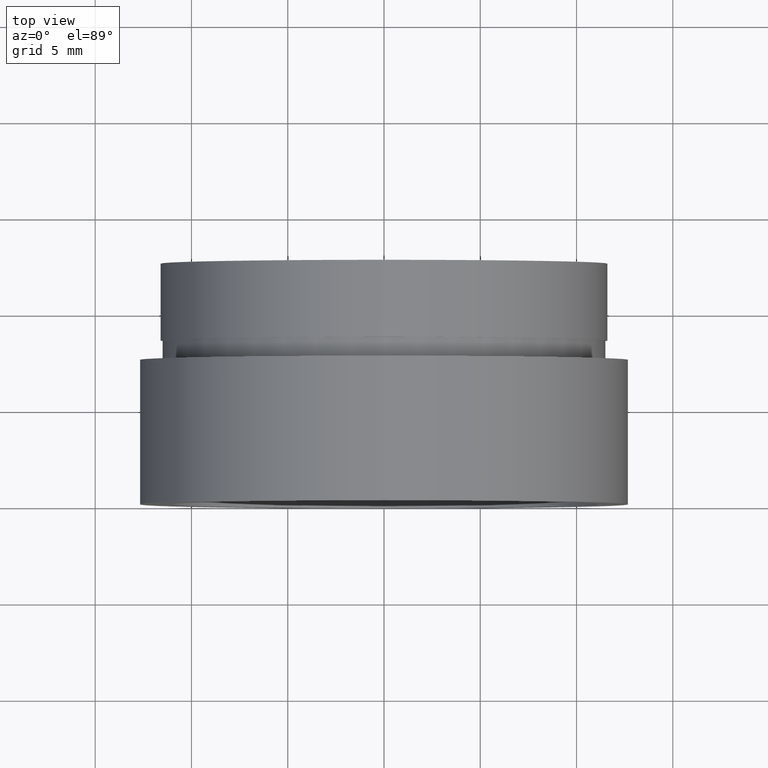
[diagram: clean part render]
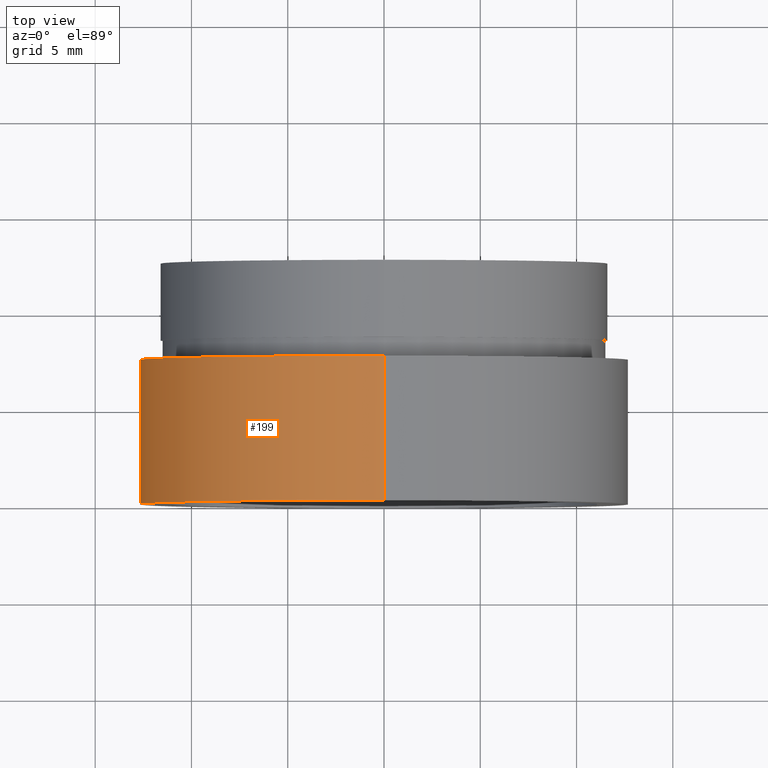
[diagram: same view with one face highlighted and labeled with its STEP entity id]
A machine part, top view. The second image highlights one B-rep face of the part: STEP entity #199.
In plain terms, the highlighted cylindrical surface (partial cylindrical patch) has radius 12.7 mm, axis along (-0, 1, -0).
Its self-contained STEP definition (entity closure, byte-faithful):
#8 = CARTESIAN_POINT ( 'NONE',  ( 1.555301434917141000E-015, -2.775557561562891400E-014, -12.70000000000002100 ) ) ;
#18 = CARTESIAN_POINT ( 'NONE',  ( 1.555301434917140800E-015, 7.499999999999978700, -12.70000000000001900 ) ) ;
#19 = EDGE_CURVE ( 'NONE', #468, #500, #156, .T. ) ;
#29 = CARTESIAN_POINT ( 'NONE',  ( 0.0000000000000000000, 161.3761669434274500, 0.0000000000000000000 ) ) ;
#65 = VECTOR ( 'NONE', #453, 1000.000000000000000 ) ;
#74 = EDGE_LOOP ( 'NONE', ( #618, #103, #320, #298 ) ) ;
#77 = AXIS2_PLACEMENT_3D ( 'NONE', #369, #167, #513 ) ;
#91 = EDGE_CURVE ( 'NONE', #550, #500, #226, .T. ) ;
#103 = ORIENTED_EDGE ( 'NONE', *, *, #261, .T. ) ;
#156 = CIRCLE ( 'NONE', #77, 12.70000000000001900 ) ;
#160 = CARTESIAN_POINT ( 'NONE',  ( 1.555301434917141000E-015, 161.3761669434274500, -12.70000000000002100 ) ) ;
#167 = DIRECTION ( 'NONE',  ( -0.0000000000000000000, 1.000000000000000000, -0.0000000000000000000 ) ) ;
#193 = DIRECTION ( 'NONE',  ( -0.0000000000000000000, 1.000000000000000000, -0.0000000000000000000 ) ) ;
#199 = ADVANCED_FACE ( 'NONE', ( #263 ), #561, .T. ) ;
#226 = LINE ( 'NONE', #428, #569 ) ;
#261 = EDGE_CURVE ( 'NONE', #549, #550, #472, .T. ) ;
#263 = FACE_OUTER_BOUND ( 'NONE', #74, .T. ) ;
#278 = DIRECTION ( 'NONE',  ( -0.0000000000000000000, 1.000000000000000000, -0.0000000000000000000 ) ) ;
#298 = ORIENTED_EDGE ( 'NONE', *, *, #19, .F. ) ;
#310 = CARTESIAN_POINT ( 'NONE',  ( 0.0000000000000000000, 7.499999999999978700, 12.70000000000001900 ) ) ;
#320 = ORIENTED_EDGE ( 'NONE', *, *, #91, .T. ) ;
#337 = DIRECTION ( 'NONE',  ( 0.0000000000000000000, 0.0000000000000000000, 1.000000000000000000 ) ) ;
#358 = CARTESIAN_POINT ( 'NONE',  ( 0.0000000000000000000, -2.775557561562891400E-014, 12.70000000000002100 ) ) ;
#369 = CARTESIAN_POINT ( 'NONE',  ( 0.0000000000000000000, 7.499999999999978700, 0.0000000000000000000 ) ) ;
#376 = AXIS2_PLACEMENT_3D ( 'NONE', #29, #430, #517 ) ;
#388 = CARTESIAN_POINT ( 'NONE',  ( 0.0000000000000000000, -2.775557561562891400E-014, 0.0000000000000000000 ) ) ;
#428 = CARTESIAN_POINT ( 'NONE',  ( 0.0000000000000000000, 161.3761669434274500, 12.70000000000002100 ) ) ;
#430 = DIRECTION ( 'NONE',  ( -0.0000000000000000000, 1.000000000000000000, -0.0000000000000000000 ) ) ;
#453 = DIRECTION ( 'NONE',  ( -0.0000000000000000000, 1.000000000000000000, -0.0000000000000000000 ) ) ;
#460 = AXIS2_PLACEMENT_3D ( 'NONE', #388, #193, #337 ) ;
#468 = VERTEX_POINT ( 'NONE', #18 ) ;
#472 = CIRCLE ( 'NONE', #460, 12.70000000000002100 ) ;
#483 = LINE ( 'NONE', #160, #65 ) ;
#500 = VERTEX_POINT ( 'NONE', #310 ) ;
#513 = DIRECTION ( 'NONE',  ( 0.0000000000000000000, 0.0000000000000000000, 1.000000000000000000 ) ) ;
#517 = DIRECTION ( 'NONE',  ( 0.0000000000000000000, 0.0000000000000000000, 1.000000000000000000 ) ) ;
#537 = EDGE_CURVE ( 'NONE', #549, #468, #483, .T. ) ;
#549 = VERTEX_POINT ( 'NONE', #8 ) ;
#550 = VERTEX_POINT ( 'NONE', #358 ) ;
#561 = CYLINDRICAL_SURFACE ( 'NONE', #376, 12.70000000000002100 ) ;
#569 = VECTOR ( 'NONE', #278, 1000.000000000000000 ) ;
#618 = ORIENTED_EDGE ( 'NONE', *, *, #537, .F. ) ;